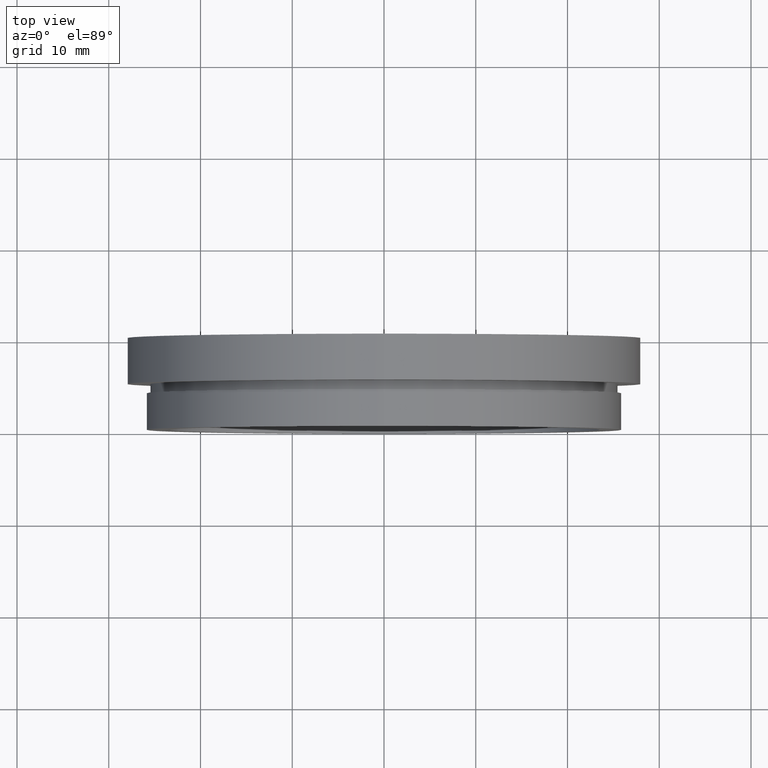
[diagram: clean part render]
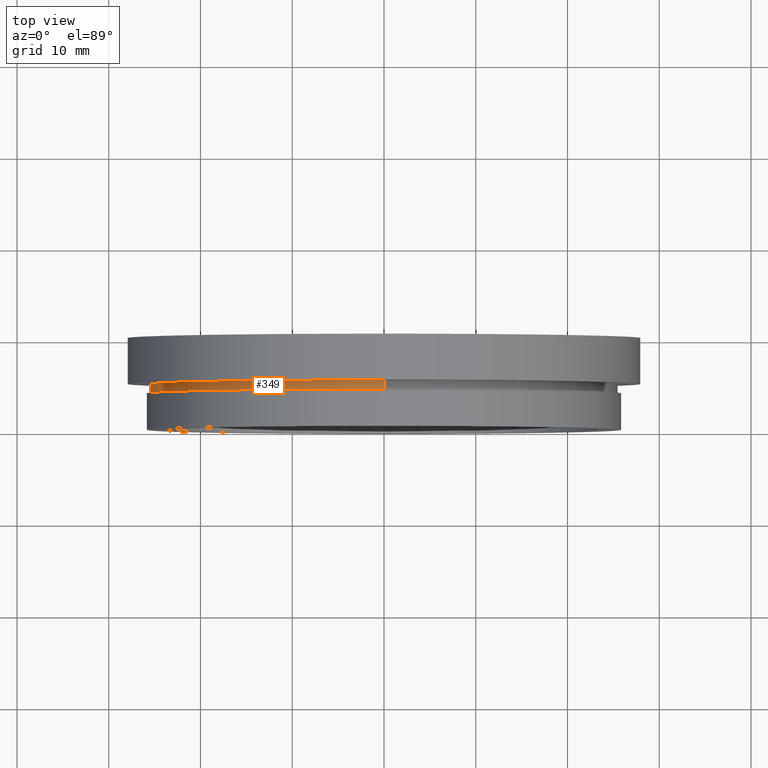
[diagram: same view with one face highlighted and labeled with its STEP entity id]
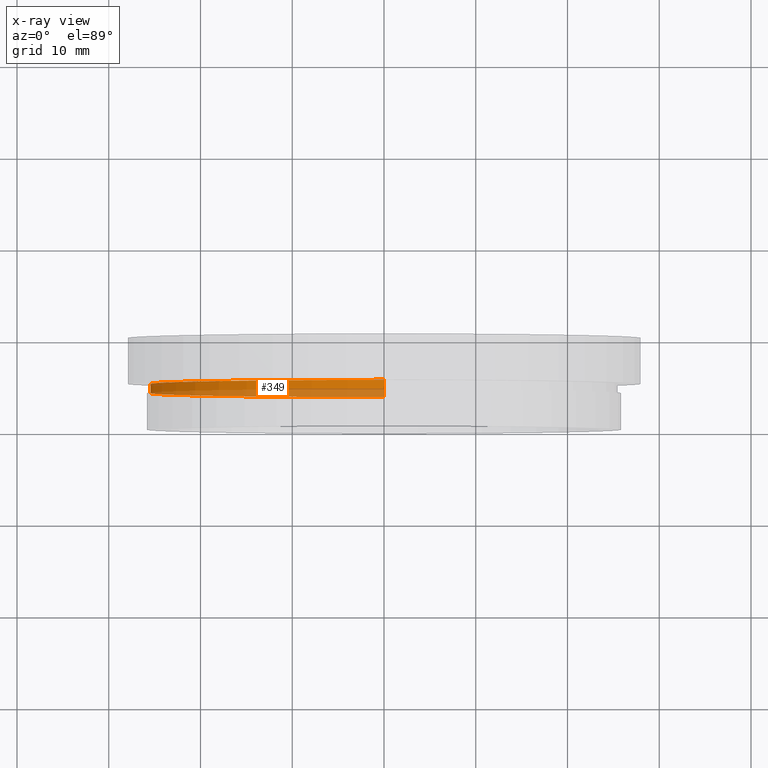
[diagram: x-ray of the same camera — body ghosted, the highlighted face saturated]
A machine part, top view. The second image highlights one B-rep face of the part: STEP entity #349.
The next image is the same camera in x-ray: the body ghosted, the highlighted face saturated — about 41% of this face is hidden behind the body in this view.
In plain terms, the highlighted cylindrical surface (partial cylindrical patch) has radius 25.45 mm, axis along (-0, 1, -0).
Its self-contained STEP definition (entity closure, byte-faithful):
#14 = DIRECTION ( 'NONE',  ( -0.0000000000000000000, 1.000000000000000000, -0.0000000000000000000 ) ) ;
#25 = VERTEX_POINT ( 'NONE', #99 ) ;
#71 = DIRECTION ( 'NONE',  ( 0.0000000000000000000, 0.0000000000000000000, 1.000000000000000000 ) ) ;
#80 = EDGE_LOOP ( 'NONE', ( #334, #583, #411, #362 ) ) ;
#99 = CARTESIAN_POINT ( 'NONE',  ( 3.116726103830013900E-015, 4.000000000000000000, -25.44999999999999900 ) ) ;
#102 = VERTEX_POINT ( 'NONE', #141 ) ;
#113 = DIRECTION ( 'NONE',  ( 0.0000000000000000000, 0.0000000000000000000, 1.000000000000000000 ) ) ;
#141 = CARTESIAN_POINT ( 'NONE',  ( 0.0000000000000000000, 5.000000000000000900, 25.44999999999999900 ) ) ;
#163 = AXIS2_PLACEMENT_3D ( 'NONE', #388, #252, #530 ) ;
#185 = EDGE_CURVE ( 'NONE', #25, #218, #452, .T. ) ;
#218 = VERTEX_POINT ( 'NONE', #538 ) ;
#225 = EDGE_CURVE ( 'NONE', #218, #102, #598, .T. ) ;
#240 = CARTESIAN_POINT ( 'NONE',  ( 0.0000000000000000000, 5.000000000000000900, 0.0000000000000000000 ) ) ;
#252 = DIRECTION ( 'NONE',  ( -0.0000000000000000000, 1.000000000000000000, -0.0000000000000000000 ) ) ;
#259 = LINE ( 'NONE', #461, #365 ) ;
#270 = CIRCLE ( 'NONE', #492, 25.44999999999999900 ) ;
#316 = CARTESIAN_POINT ( 'NONE',  ( 0.0000000000000000000, 4.000000000000000000, 0.0000000000000000000 ) ) ;
#334 = ORIENTED_EDGE ( 'NONE', *, *, #464, .F. ) ;
#349 = ADVANCED_FACE ( 'NONE', ( #508 ), #493, .T. ) ;
#362 = ORIENTED_EDGE ( 'NONE', *, *, #401, .F. ) ;
#365 = VECTOR ( 'NONE', #601, 1000.000000000000000 ) ;
#388 = CARTESIAN_POINT ( 'NONE',  ( 0.0000000000000000000, 13.74468085106383300, 0.0000000000000000000 ) ) ;
#401 = EDGE_CURVE ( 'NONE', #597, #102, #270, .T. ) ;
#410 = DIRECTION ( 'NONE',  ( -0.0000000000000000000, 1.000000000000000000, -0.0000000000000000000 ) ) ;
#411 = ORIENTED_EDGE ( 'NONE', *, *, #225, .T. ) ;
#444 = DIRECTION ( 'NONE',  ( -0.0000000000000000000, 1.000000000000000000, -0.0000000000000000000 ) ) ;
#452 = CIRCLE ( 'NONE', #548, 25.44999999999999900 ) ;
#458 = VECTOR ( 'NONE', #444, 1000.000000000000000 ) ;
#461 = CARTESIAN_POINT ( 'NONE',  ( 3.116726103830013900E-015, 13.74468085106383300, -25.44999999999999900 ) ) ;
#464 = EDGE_CURVE ( 'NONE', #25, #597, #259, .T. ) ;
#490 = CARTESIAN_POINT ( 'NONE',  ( 0.0000000000000000000, 13.74468085106383300, 25.44999999999999900 ) ) ;
#492 = AXIS2_PLACEMENT_3D ( 'NONE', #240, #14, #113 ) ;
#493 = CYLINDRICAL_SURFACE ( 'NONE', #163, 25.44999999999999900 ) ;
#508 = FACE_OUTER_BOUND ( 'NONE', #80, .T. ) ;
#530 = DIRECTION ( 'NONE',  ( 0.0000000000000000000, 0.0000000000000000000, 1.000000000000000000 ) ) ;
#538 = CARTESIAN_POINT ( 'NONE',  ( 0.0000000000000000000, 4.000000000000000000, 25.44999999999999900 ) ) ;
#543 = CARTESIAN_POINT ( 'NONE',  ( 3.116726103830013900E-015, 5.000000000000000900, -25.44999999999999900 ) ) ;
#548 = AXIS2_PLACEMENT_3D ( 'NONE', #316, #410, #71 ) ;
#583 = ORIENTED_EDGE ( 'NONE', *, *, #185, .T. ) ;
#597 = VERTEX_POINT ( 'NONE', #543 ) ;
#598 = LINE ( 'NONE', #490, #458 ) ;
#601 = DIRECTION ( 'NONE',  ( -0.0000000000000000000, 1.000000000000000000, -0.0000000000000000000 ) ) ;